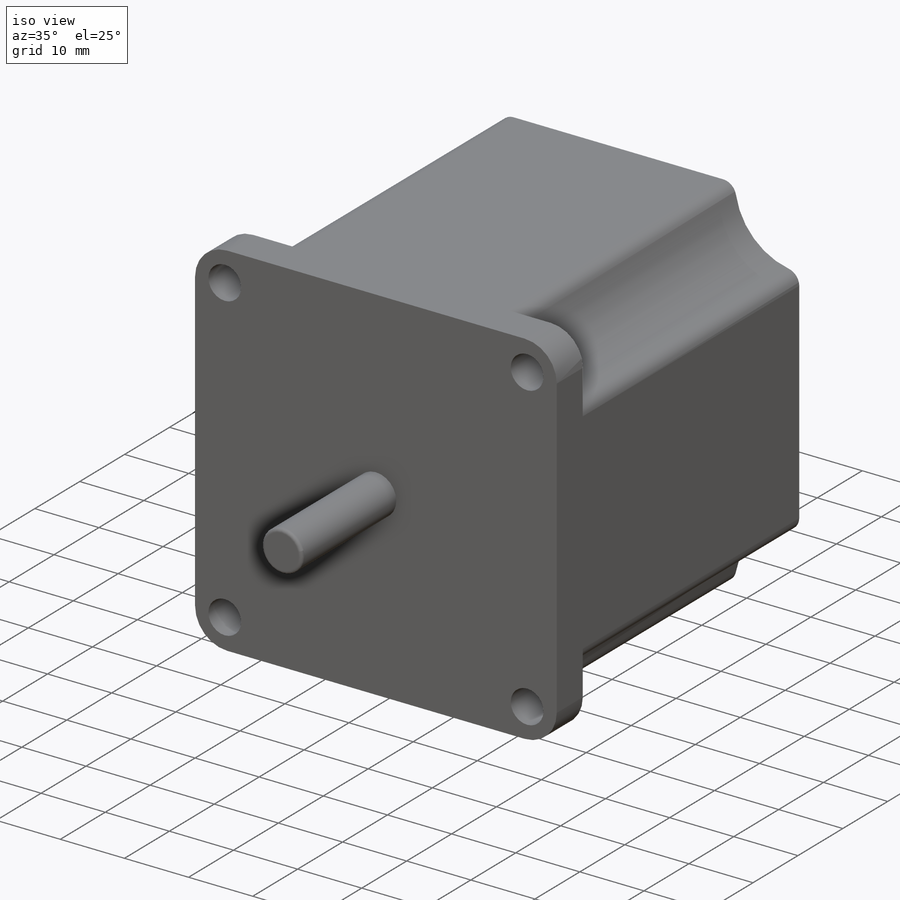
[diagram: iso view]
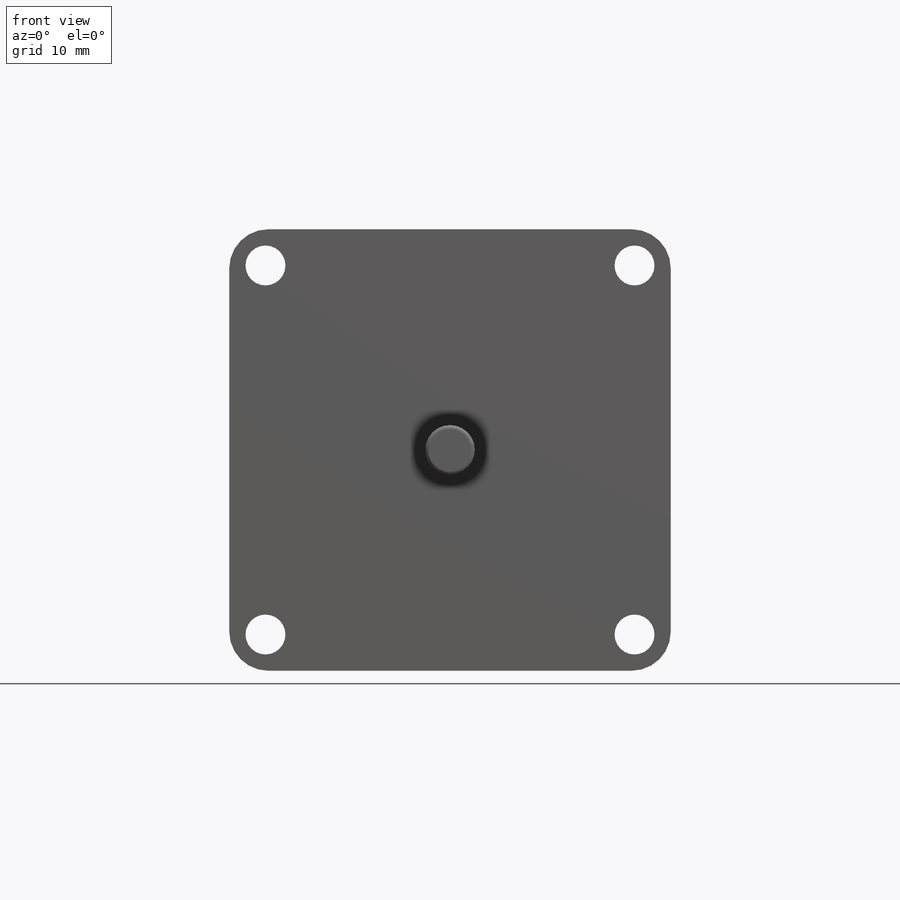
[diagram: front view]
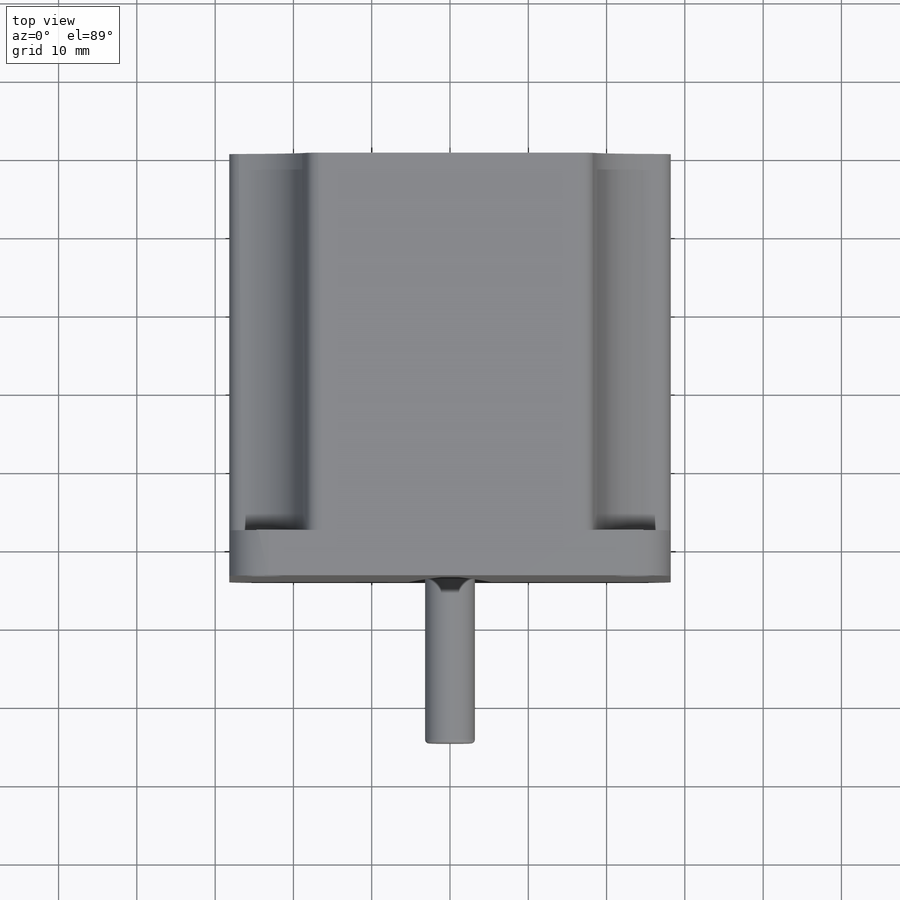
[diagram: top view]
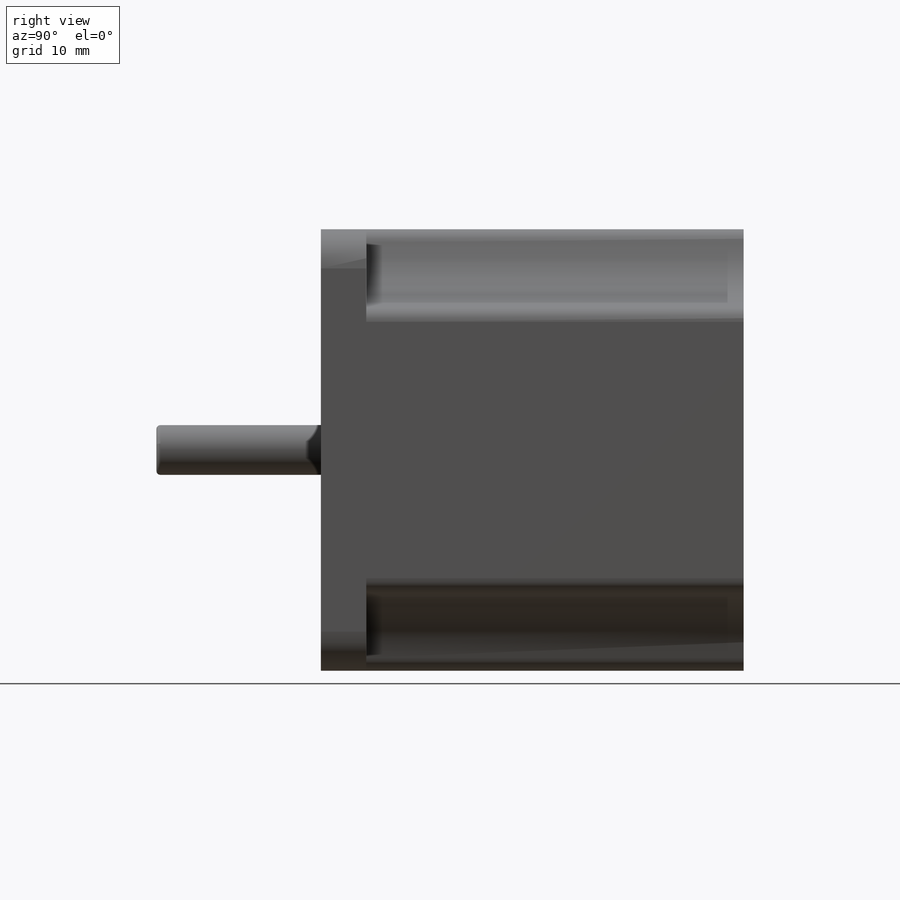
[diagram: right view]
SOLIDWORKS PART (.sldprt)
format: sldprt  version: not decoded by parser v0  size: 287,744 bytes
history: native  units: mm
features: fillet x13, sketch x4, plane x3, extrude x2, cut_extrude x2, material x1 (+9 scaffold rows collapsed)
feature tree (34):
  scaffold x9  (default folders/planes/origin — collapsed)
  material  "Matériau <non spécifié>"
  plane  "Plan de face"
  plane  "Plan de dessus"
  plane  "Plan de droite"
  sketch  "Esquisse2"  dims[D1=56.4mm D2=28.2mm D3=56.4mm D4=28.2mm]
  extrude  "Boss.-Extru.2"  Depth=54mm
  sketch  "Esquisse3"  dims[c1.D1=5.1mm c1.D2=4.63mm c1.D3=~6.722252mm c2.D3=90.0deg c3.D3=4.63mm c3.D5=47.14mm c3.D4=4.0]
  cut_extrude  "Enlèv. mat.-Extru.1"  Depth=54mm
  fillet  "Congé2"  Radius=5mm
  fillet  "Congé3"  Radius=5mm
  fillet  "Congé4"  Radius=5mm
  fillet  "Congé6"  Radius=5mm
  sketch  "Esquisse4"  dims[c1.D1=0.0mm c1.D2=~4.854756mm c2.D2=90.0deg c3.D2=10.0mm c3.D3=10.0mm c3.D4=4.0]
  cut_extrude  "Enlèv. mat.-Extru.2"  Depth=48.2mm
  fillet  "Congé7"  Radius=2mm
  fillet  "Congé8"  Radius=2mm
  fillet  "Congé9"  Radius=2mm
  fillet  "Congé10"  Radius=2mm
  fillet  "Congé11"  Radius=2mm
  fillet  "Congé12"  Radius=2mm
  fillet  "Congé13"  Radius=2mm
  fillet  "Congé14"  Radius=2mm
  sketch  "Esquisse5"  dims[D1=6.35mm]
  extrude  "Boss.-Extru.3"  Depth=21mm
  fillet  "Congé15"  Radius=0.5mm
decode coverage: 21 of 21 modeling features carry decoded parameters
note: ~ marks probable driven/reference dimensions
note: suppression state not decoded; provenance and decode notes live in map.json
